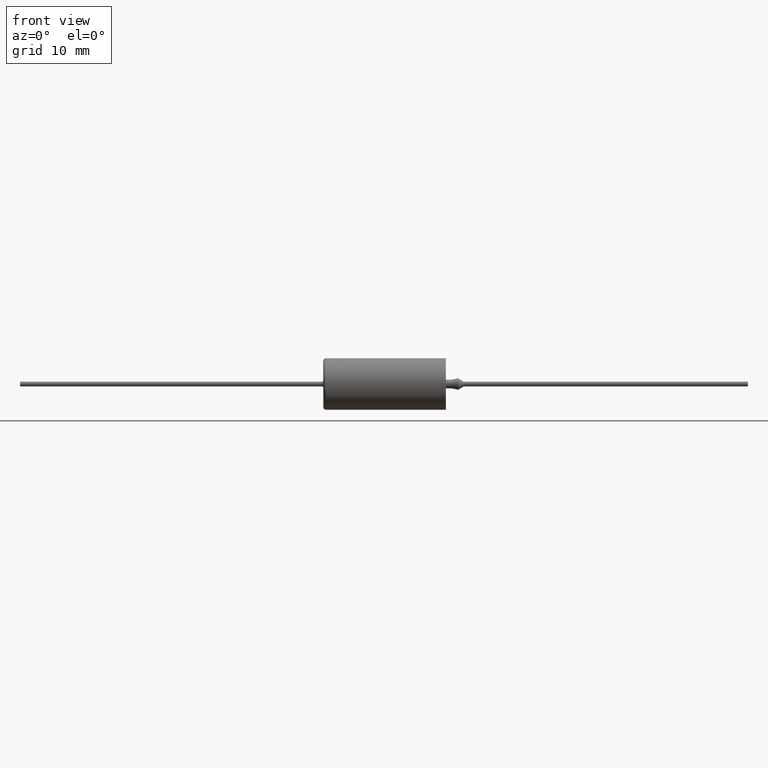
[diagram: clean part render]
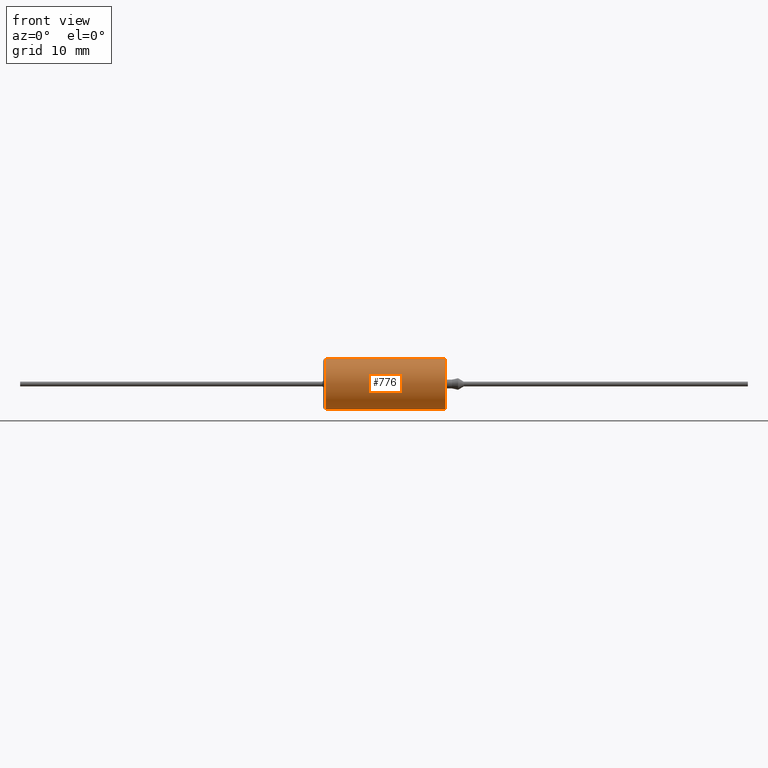
[diagram: same view with one face highlighted and labeled with its STEP entity id]
A machine part, front view. The second image highlights one B-rep face of the part: STEP entity #776.
In plain terms, the highlighted cylindrical surface (edge-blend (fillet) strip) has radius 3.795 mm, axis along (-1, -0, -0).
Its self-contained STEP definition (entity closure, byte-faithful):
#29 = CARTESIAN_POINT ( 'NONE',  ( 0.7967368280151977400, -1.135541335622584600E-009, 3.794977567310410900 ) ) ;
#34 = ORIENTED_EDGE ( 'NONE', *, *, #3274, .T. ) ;
#61 = VERTEX_POINT ( 'NONE', #4016 ) ;
#145 = ORIENTED_EDGE ( 'NONE', *, *, #406, .F. ) ;
#161 = LINE ( 'NONE', #568, #1588 ) ;
#162 = LINE ( 'NONE', #3474, #1861 ) ;
#166 = EDGE_CURVE ( 'NONE', #2262, #3066, #1674, .T. ) ;
#196 = CARTESIAN_POINT ( 'NONE',  ( 1.735129680208023800, -0.4997642943587106700, 3.761949049373760600 ) ) ;
#201 = CARTESIAN_POINT ( 'NONE',  ( 3.658290285649548100, 1.261067529811681900E-008, 3.794985740630745700 ) ) ;
#214 = DIRECTION ( 'NONE',  ( -1.000000000000000000, -0.0000000000000000000, -0.0000000000000000000 ) ) ;
#217 = CARTESIAN_POINT ( 'NONE',  ( 1.735129680208023800, -0.4997642943587106700, 3.761949049373760600 ) ) ;
#221 = DIRECTION ( 'NONE',  ( -1.000000000000000000, -0.0000000000000000000, -0.0000000000000000000 ) ) ;
#225 = VERTEX_POINT ( 'NONE', #784 ) ;
#235 = CARTESIAN_POINT ( 'NONE',  ( 3.047249708530260100, -0.1670667231519188700, 3.794967311832442700 ) ) ;
#278 = CARTESIAN_POINT ( 'NONE',  ( 3.056614301916358300, 1.310740858873400100E-009, 3.794986114345480400 ) ) ;
#325 = EDGE_CURVE ( 'NONE', #3915, #422, #2203, .T. ) ;
#344 = CARTESIAN_POINT ( 'NONE',  ( 4.304891517939793700, -0.05888474370725702000, 3.794543132836749600 ) ) ;
#392 = CARTESIAN_POINT ( 'NONE',  ( 18.03999999999999900, 0.0000000000000000000, 3.795000000000000400 ) ) ;
#393 = VERTEX_POINT ( 'NONE', #1642 ) ;
#404 = DIRECTION ( 'NONE',  ( -1.000000000000000000, -0.0000000000000000000, -0.0000000000000000000 ) ) ;
#406 = EDGE_CURVE ( 'NONE', #1019, #1360, #3738, .T. ) ;
#411 = CIRCLE ( 'NONE', #1962, 3.795000000000000400 ) ;
#420 = CARTESIAN_POINT ( 'NONE',  ( 0.7007149532289480600, -0.3341247696263883700, 3.783953791891350200 ) ) ;
#422 = VERTEX_POINT ( 'NONE', #1166 ) ;
#436 = CARTESIAN_POINT ( 'NONE',  ( 5.378398342063343700, 1.434771836136480700E-008, 3.794991221335218600 ) ) ;
#441 = DIRECTION ( 'NONE',  ( 0.0000000000000000000, 0.0000000000000000000, 1.000000000000000000 ) ) ;
#443 = CARTESIAN_POINT ( 'NONE',  ( 4.671617356346774700, -0.4363798927214266300, 3.770369487912895100 ) ) ;
#454 = DIRECTION ( 'NONE',  ( 1.000000000000000000, 0.0000000000000000000, 0.0000000000000000000 ) ) ;
#465 = FACE_OUTER_BOUND ( 'NONE', #3307, .T. ) ;
#514 = B_SPLINE_CURVE_WITH_KNOTS ( 'NONE', 3,
 ( #1576, #2921, #1986, #1922 ),
 .UNSPECIFIED., .F., .F.,
 ( 4, 4 ),
 ( 0.0000000000000000000, 1.000000000000000000 ),
 .UNSPECIFIED. ) ;
#516 = CARTESIAN_POINT ( 'NONE',  ( 3.297263422392719500, -0.4997642943587106700, 3.761949049373760600 ) ) ;
#524 = CARTESIAN_POINT ( 'NONE',  ( 3.473663498511816000, -0.1670678009036936100, 3.794966328717454700 ) ) ;
#528 = EDGE_CURVE ( 'NONE', #3090, #3634, #2171, .T. ) ;
#549 = CARTESIAN_POINT ( 'NONE',  ( 3.818564942604001800, -0.3341247709037028500, 3.783953791721662800 ) ) ;
#560 = CARTESIAN_POINT ( 'NONE',  ( 3.037885285718177300, -0.3341307079610417700, 3.783953003000382100 ) ) ;
#563 = ORIENTED_EDGE ( 'NONE', *, *, #2207, .F. ) ;
#568 = CARTESIAN_POINT ( 'NONE',  ( 18.03999999999999900, 0.0000000000000000000, 3.795000000000000400 ) ) ;
#582 = CARTESIAN_POINT ( 'NONE',  ( 18.03999999999999900, 4.647534602764205900E-016, -3.795000000000000400 ) ) ;
#583 = EDGE_CURVE ( 'NONE', #3734, #3041, #2405, .T. ) ;
#590 = LINE ( 'NONE', #1010, #4333 ) ;
#592 = EDGE_CURVE ( 'NONE', #2531, #3201, #514, .T. ) ;
#623 = CARTESIAN_POINT ( 'NONE',  ( 1.248873472111748900, -0.3341439825684537300, 3.783951239506321500 ) ) ;
#634 = ORIENTED_EDGE ( 'NONE', *, *, #3031, .F. ) ;
#648 = ORIENTED_EDGE ( 'NONE', *, *, #3158, .T. ) ;
#677 = EDGE_CURVE ( 'NONE', #2346, #1045, #3409, .T. ) ;
#679 = ORIENTED_EDGE ( 'NONE', *, *, #1114, .F. ) ;
#680 = B_SPLINE_CURVE_WITH_KNOTS ( 'NONE', 3,
 ( #2265, #235, #560, #913 ),
 .UNSPECIFIED., .F., .F.,
 ( 4, 4 ),
 ( 0.4415123066021989200, 1.000000000000000000 ),
 .UNSPECIFIED. ) ;
#731 = ORIENTED_EDGE ( 'NONE', *, *, #2227, .F. ) ;
#750 = DIRECTION ( 'NONE',  ( 1.000000000000000000, 0.0000000000000000000, 0.0000000000000000000 ) ) ;
#776 = ADVANCED_FACE ( 'NONE', ( #465 ), #3861, .T. ) ;
#784 = CARTESIAN_POINT ( 'NONE',  ( 4.707904748187333500, -0.3090537871630185700, 3.782394844095496600 ) ) ;
#794 = CARTESIAN_POINT ( 'NONE',  ( 1.735129680208023800, -0.4997642943587106700, 3.761949049373760600 ) ) ;
#809 = CARTESIAN_POINT ( 'NONE',  ( 4.707904748187333500, -0.3090537871630185700, 3.782394844095496600 ) ) ;
#816 = VECTOR ( 'NONE', #750, 1000.000000000000000 ) ;
#818 = DIRECTION ( 'NONE',  ( 1.000000000000000000, 0.0000000000000000000, 0.0000000000000000000 ) ) ;
#828 = CARTESIAN_POINT ( 'NONE',  ( 1.484155899049565400, -0.1670743799871687900, 3.794996994276370400 ) ) ;
#866 = VERTEX_POINT ( 'NONE', #582 ) ;
#888 = CARTESIAN_POINT ( 'NONE',  ( 3.028519480344098000, -0.4997642943587106700, 3.761949049373760600 ) ) ;
#892 = VERTEX_POINT ( 'NONE', #888 ) ;
#893 = CARTESIAN_POINT ( 'NONE',  ( 1.831286780358707800, -0.1670623038527653800, 3.794955467334448300 ) ) ;
#896 = CARTESIAN_POINT ( 'NONE',  ( 0.7967368280151977400, -1.135541335622584600E-009, 3.794977567310410900 ) ) ;
#908 = EDGE_CURVE ( 'NONE', #3380, #2291, #411, .T. ) ;
#909 = CARTESIAN_POINT ( 'NONE',  ( 1.114748877404918100, 1.339220118626902900E-009, 3.794999801708622800 ) ) ;
#913 = CARTESIAN_POINT ( 'NONE',  ( 3.028519480344098000, -0.4997642943587106700, 3.761949049373760600 ) ) ;
#916 = DIRECTION ( 'NONE',  ( 0.0000000000000000000, 0.0000000000000000000, -1.000000000000000000 ) ) ;
#922 = CARTESIAN_POINT ( 'NONE',  ( 1.315936966647324800, -0.4997642943587096700, 3.761949049373760600 ) ) ;
#934 = CARTESIAN_POINT ( 'NONE',  ( 4.743048270700279900, -0.03925806866907864000, 3.794847704873221000 ) ) ;
#945 = CARTESIAN_POINT ( 'NONE',  ( 2.965051877595765300, 1.286466660152226300E-008, 3.794986037221314200 ) ) ;
#985 = EDGE_CURVE ( 'NONE', #2621, #3090, #1633, .T. ) ;
#1010 = CARTESIAN_POINT ( 'NONE',  ( 18.03999999999999900, 0.0000000000000000000, 3.795000000000000400 ) ) ;
#1017 = EDGE_CURVE ( 'NONE', #3120, #866, #3378, .T. ) ;
#1019 = VERTEX_POINT ( 'NONE', #2271 ) ;
#1038 = CARTESIAN_POINT ( 'NONE',  ( 3.891842957260163200, -0.4997642943587106700, 3.761949049373760600 ) ) ;
#1045 = VERTEX_POINT ( 'NONE', #2948 ) ;
#1066 = CARTESIAN_POINT ( 'NONE',  ( 4.036011471948663500, -1.137249635612766000E-009, 3.794977567049227000 ) ) ;
#1089 = ORIENTED_EDGE ( 'NONE', *, *, #908, .T. ) ;
#1094 = ORIENTED_EDGE ( 'NONE', *, *, #4239, .T. ) ;
#1103 = B_SPLINE_CURVE_WITH_KNOTS ( 'NONE', 3,
 ( #4290, #3584, #2555, #945 ),
 .UNSPECIFIED., .F., .F.,
 ( 4, 4 ),
 ( 0.0000000000000000000, 0.5584875452184870900 ),
 .UNSPECIFIED. ) ;
#1104 = B_SPLINE_CURVE_WITH_KNOTS ( 'NONE', 3,
 ( #3384, #1701, #2026, #1038 ),
 .UNSPECIFIED., .F., .F.,
 ( 4, 4 ),
 ( 0.5027951905243075400, 1.000000000000000000 ),
 .UNSPECIFIED. ) ;
#1110 = CARTESIAN_POINT ( 'NONE',  ( 3.514356370823136000, -0.4997642943587106700, 3.761949049373760600 ) ) ;
#1114 = EDGE_CURVE ( 'NONE', #3066, #2931, #1955, .T. ) ;
#1116 = CARTESIAN_POINT ( 'NONE',  ( 18.03999999999999900, 0.0000000000000000000, 3.795000000000000400 ) ) ;
#1139 = LINE ( 'NONE', #3194, #2878 ) ;
#1141 = EDGE_CURVE ( 'NONE', #3656, #3014, #1104, .T. ) ;
#1146 = CARTESIAN_POINT ( 'NONE',  ( 4.995209430546401200, -0.3341359286692290900, 3.783952309444060800 ) ) ;
#1161 = CARTESIAN_POINT ( 'NONE',  ( 3.561859510770319500, 3.479633199176711400E-008, 3.794985583759084700 ) ) ;
#1166 = CARTESIAN_POINT ( 'NONE',  ( 1.414902502526452800, 1.414942446782219700E-009, 3.794999801662097800 ) ) ;
#1185 = CARTESIAN_POINT ( 'NONE',  ( 18.03999999999999900, 0.0000000000000000000, 3.795000000000000400 ) ) ;
#1192 = VECTOR ( 'NONE', #3417, 1000.000000000000000 ) ;
#1203 = VERTEX_POINT ( 'NONE', #3413 ) ;
#1206 = VECTOR ( 'NONE', #4235, 1000.000000000000000 ) ;
#1234 = CARTESIAN_POINT ( 'NONE',  ( 1.879360679399979100, -1.138095618239165700E-009, 3.794977566920147500 ) ) ;
#1261 = ORIENTED_EDGE ( 'NONE', *, *, #2201, .F. ) ;
#1290 = EDGE_CURVE ( 'NONE', #3656, #3251, #2884, .T. ) ;
#1305 = CARTESIAN_POINT ( 'NONE',  ( 5.378398342063343700, 1.434771836136480700E-008, 3.794991221335218600 ) ) ;
#1309 = VECTOR ( 'NONE', #818, 1000.000000000000000 ) ;
#1360 = VERTEX_POINT ( 'NONE', #436 ) ;
#1361 = ORIENTED_EDGE ( 'NONE', *, *, #3214, .F. ) ;
#1398 = CARTESIAN_POINT ( 'NONE',  ( 18.03999999999999900, 4.647534602764205900E-016, -3.795000000000000400 ) ) ;
#1411 = LINE ( 'NONE', #3910, #4318 ) ;
#1458 = B_SPLINE_CURVE_WITH_KNOTS ( 'NONE', 3,
 ( #3159, #1820, #1146, #2482 ),
 .UNSPECIFIED., .F., .F.,
 ( 4, 4 ),
 ( 0.3838199637711856000, 1.000000000000000000 ),
 .UNSPECIFIED. ) ;
#1487 = LINE ( 'NONE', #2596, #3616 ) ;
#1506 = CARTESIAN_POINT ( 'NONE',  ( 4.233375229108257400, -0.3090537871630185700, 3.782394844095496600 ) ) ;
#1524 = EDGE_CURVE ( 'NONE', #2665, #4315, #3136, .T. ) ;
#1542 = CARTESIAN_POINT ( 'NONE',  ( 3.914628471433054800, -1.136385305933532200E-009, 3.794977567181413700 ) ) ;
#1559 = DIRECTION ( 'NONE',  ( 1.000000000000000000, 0.0000000000000000000, 0.0000000000000000000 ) ) ;
#1570 = ORIENTED_EDGE ( 'NONE', *, *, #1141, .F. ) ;
#1576 = CARTESIAN_POINT ( 'NONE',  ( 4.233375229108257400, -0.3090537871630185700, 3.782394844095496600 ) ) ;
#1583 = DIRECTION ( 'NONE',  ( 1.000000000000000000, 0.0000000000000000000, 0.0000000000000000000 ) ) ;
#1588 = VECTOR ( 'NONE', #221, 1000.000000000000000 ) ;
#1609 = CARTESIAN_POINT ( 'NONE',  ( 5.282358061730480600, -0.3341359282545661700, 3.783952309499147800 ) ) ;
#1633 = LINE ( 'NONE', #217, #1206 ) ;
#1642 = CARTESIAN_POINT ( 'NONE',  ( 4.653473655393446200, -0.4997642943587106700, 3.761949049373760600 ) ) ;
#1664 = ORIENTED_EDGE ( 'NONE', *, *, #3676, .T. ) ;
#1674 = B_SPLINE_CURVE_WITH_KNOTS ( 'NONE', 3,
 ( #2122, #3820, #1751, #1110 ),
 .UNSPECIFIED., .F., .F.,
 ( 4, 4 ),
 ( 0.4441890944831781200, 1.000000000000000000 ),
 .UNSPECIFIED. ) ;
#1701 = CARTESIAN_POINT ( 'NONE',  ( 3.987958399918972500, -0.1670623032074989600, 3.794955467590766400 ) ) ;
#1704 = CARTESIAN_POINT ( 'NONE',  ( 18.03999999999999900, 0.0000000000000000000, 3.795000000000000400 ) ) ;
#1739 = EDGE_CURVE ( 'NONE', #1834, #1019, #162, .T. ) ;
#1740 = CARTESIAN_POINT ( 'NONE',  ( 3.891842957260163200, -0.4997642943587106700, 3.761949049373760600 ) ) ;
#1751 = CARTESIAN_POINT ( 'NONE',  ( 3.562338541248545100, -0.3341315039642117100, 3.783952897253612100 ) ) ;
#1773 = LINE ( 'NONE', #2788, #3360 ) ;
#1798 = CARTESIAN_POINT ( 'NONE',  ( 4.689761047234005900, -0.3727826763112752100, 3.777187652526455200 ) ) ;
#1807 = CARTESIAN_POINT ( 'NONE',  ( 4.947171056527290400, -0.4997642943587106700, 3.761949049373760600 ) ) ;
#1820 = CARTESIAN_POINT ( 'NONE',  ( 5.043242817517984200, -0.1670698811540137500, 3.794975344605389500 ) ) ;
#1834 = VERTEX_POINT ( 'NONE', #1807 ) ;
#1835 = EDGE_CURVE ( 'NONE', #61, #1834, #1458, .T. ) ;
#1847 = B_SPLINE_CURVE_WITH_KNOTS ( 'NONE', 3,
 ( #2767, #2433, #2724, #4098 ),
 .UNSPECIFIED., .F., .F.,
 ( 4, 4 ),
 ( 0.0000000000000000000, 0.9157094183413874200 ),
 .UNSPECIFIED. ) ;
#1861 = VECTOR ( 'NONE', #2452, 1000.000000000000000 ) ;
#1879 = ORIENTED_EDGE ( 'NONE', *, *, #2915, .F. ) ;
#1881 = DIRECTION ( 'NONE',  ( 0.0000000000000000000, 0.0000000000000000000, -1.000000000000000000 ) ) ;
#1922 = CARTESIAN_POINT ( 'NONE',  ( 4.304891517939793700, -0.05888474370725702000, 3.794543132836749600 ) ) ;
#1927 = CARTESIAN_POINT ( 'NONE',  ( 1.622661293356940400, -0.4997642943587106700, 3.761949049373760600 ) ) ;
#1939 = ORIENTED_EDGE ( 'NONE', *, *, #2955, .F. ) ;
#1943 = ORIENTED_EDGE ( 'NONE', *, *, #2740, .T. ) ;
#1948 = DIRECTION ( 'NONE',  ( 1.000000000000000000, 0.0000000000000000000, 0.0000000000000000000 ) ) ;
#1955 = LINE ( 'NONE', #2713, #2995 ) ;
#1962 = AXIS2_PLACEMENT_3D ( 'NONE', #3609, #1583, #1881 ) ;
#1972 = LINE ( 'NONE', #3771, #816 ) ;
#1986 = CARTESIAN_POINT ( 'NONE',  ( 4.281052742218062900, -0.1423778396059969000, 3.793247464456865400 ) ) ;
#2000 = EDGE_CURVE ( 'NONE', #2108, #892, #680, .T. ) ;
#2026 = CARTESIAN_POINT ( 'NONE',  ( 3.939905272855689100, -0.3341247722125929600, 3.783953791547780600 ) ) ;
#2040 = CARTESIAN_POINT ( 'NONE',  ( 2.641702550035738300, -0.4997642943587106700, 3.761949049373760600 ) ) ;
#2070 = VERTEX_POINT ( 'NONE', #3006 ) ;
#2108 = VERTEX_POINT ( 'NONE', #278 ) ;
#2122 = CARTESIAN_POINT ( 'NONE',  ( 3.658290285649548100, 1.261067529811681900E-008, 3.794985740630745700 ) ) ;
#2169 = VECTOR ( 'NONE', #2220, 1000.000000000000000 ) ;
#2171 = LINE ( 'NONE', #3917, #4388 ) ;
#2172 = ORIENTED_EDGE ( 'NONE', *, *, #1835, .F. ) ;
#2174 = CARTESIAN_POINT ( 'NONE',  ( 1.879360679399979100, -1.138095618239165700E-009, 3.794977566920147500 ) ) ;
#2197 = DIRECTION ( 'NONE',  ( 1.000000000000000000, 0.0000000000000000000, 0.0000000000000000000 ) ) ;
#2199 = CARTESIAN_POINT ( 'NONE',  ( 3.561859510770319500, 3.479633199176711400E-008, 3.794985583759084700 ) ) ;
#2201 = EDGE_CURVE ( 'NONE', #225, #2531, #1139, .T. ) ;
#2203 = B_SPLINE_CURVE_WITH_KNOTS ( 'NONE', 3,
 ( #2495, #2594, #828, #2913 ),
 .UNSPECIFIED., .F., .F.,
 ( 4, 4 ),
 ( 0.0000000000000000000, 0.9157093637414721600 ),
 .UNSPECIFIED. ) ;
#2207 = EDGE_CURVE ( 'NONE', #3201, #2346, #2215, .T. ) ;
#2215 = LINE ( 'NONE', #3477, #1309 ) ;
#2220 = DIRECTION ( 'NONE',  ( -1.000000000000000000, -0.0000000000000000000, -0.0000000000000000000 ) ) ;
#2222 = CARTESIAN_POINT ( 'NONE',  ( 3.914628471433054800, -1.136385305933532200E-009, 3.794977567181413700 ) ) ;
#2223 = B_SPLINE_CURVE_WITH_KNOTS ( 'NONE', 3,
 ( #3485, #443, #1798, #809 ),
 .UNSPECIFIED., .F., .F.,
 ( 4, 4 ),
 ( 0.0000000000000000000, 1.000000000000000000 ),
 .UNSPECIFIED. ) ;
#2227 = EDGE_CURVE ( 'NONE', #3041, #3915, #1411, .T. ) ;
#2255 = ORIENTED_EDGE ( 'NONE', *, *, #1017, .F. ) ;
#2258 = CARTESIAN_POINT ( 'NONE',  ( 0.9393454066262095800, -0.4997642943587106700, 3.761949049373760600 ) ) ;
#2262 = VERTEX_POINT ( 'NONE', #201 ) ;
#2263 = CARTESIAN_POINT ( 'NONE',  ( 1.181812029369666100, -0.1670743901499334700, 3.794996994974492800 ) ) ;
#2265 = CARTESIAN_POINT ( 'NONE',  ( 3.056614301916358300, 1.310740858873400100E-009, 3.794986114345480400 ) ) ;
#2271 = CARTESIAN_POINT ( 'NONE',  ( 5.234333538760533400, -0.4997642943587106700, 3.761949049373760600 ) ) ;
#2281 = B_SPLINE_CURVE_WITH_KNOTS ( 'NONE', 3,
 ( #29, #2396, #420, #3094 ),
 .UNSPECIFIED., .F., .F.,
 ( 4, 4 ),
 ( 0.5027951905429805000, 1.000000000000000000 ),
 .UNSPECIFIED. ) ;
#2291 = VERTEX_POINT ( 'NONE', #2541 ) ;
#2300 = LINE ( 'NONE', #3978, #3773 ) ;
#2332 = LINE ( 'NONE', #1398, #2689 ) ;
#2340 = EDGE_CURVE ( 'NONE', #2262, #4315, #4216, .T. ) ;
#2346 = VERTEX_POINT ( 'NONE', #3209 ) ;
#2396 = CARTESIAN_POINT ( 'NONE',  ( 0.7487259181180926400, -0.1670623019018401800, 3.794955468109411500 ) ) ;
#2405 = B_SPLINE_CURVE_WITH_KNOTS ( 'NONE', 3,
 ( #909, #2263, #623, #922 ),
 .UNSPECIFIED., .F., .F.,
 ( 4, 4 ),
 ( 0.08429063017640003900, 1.000000000000000000 ),
 .UNSPECIFIED. ) ;
#2433 = CARTESIAN_POINT ( 'NONE',  ( 0.9872327060278312000, -0.3341438429801667500, 3.783951258050230600 ) ) ;
#2452 = DIRECTION ( 'NONE',  ( 1.000000000000000000, 0.0000000000000000000, 0.0000000000000000000 ) ) ;
#2473 = LINE ( 'NONE', #1116, #3269 ) ;
#2482 = CARTESIAN_POINT ( 'NONE',  ( 4.947171056527290400, -0.4997642943587106700, 3.761949049373760600 ) ) ;
#2491 = ORIENTED_EDGE ( 'NONE', *, *, #3308, .T. ) ;
#2495 = CARTESIAN_POINT ( 'NONE',  ( 1.622661293356940400, -0.4997642943587106700, 3.761949049373760600 ) ) ;
#2531 = VERTEX_POINT ( 'NONE', #1506 ) ;
#2534 = CARTESIAN_POINT ( 'NONE',  ( 18.03999999999999900, 0.0000000000000000000, 3.795000000000000400 ) ) ;
#2541 = CARTESIAN_POINT ( 'NONE',  ( 0.4000000000000010200, 4.647534602764205900E-016, -3.795000000000000400 ) ) ;
#2555 = CARTESIAN_POINT ( 'NONE',  ( 2.917081894270312500, -0.1670671319721213100, 3.794967131342457600 ) ) ;
#2568 = AXIS2_PLACEMENT_3D ( 'NONE', #3511, #4204, #441 ) ;
#2594 = CARTESIAN_POINT ( 'NONE',  ( 1.553407546219404800, -0.3341440000663621900, 3.783951237181773800 ) ) ;
#2596 = CARTESIAN_POINT ( 'NONE',  ( 3.028519480344098000, -0.4997642943587106700, 3.761949049373760600 ) ) ;
#2611 = ORIENTED_EDGE ( 'NONE', *, *, #3391, .F. ) ;
#2621 = VERTEX_POINT ( 'NONE', #794 ) ;
#2626 = VECTOR ( 'NONE', #2770, 1000.000000000000000 ) ;
#2665 = VERTEX_POINT ( 'NONE', #516 ) ;
#2687 = EDGE_CURVE ( 'NONE', #3423, #2621, #3667, .T. ) ;
#2689 = VECTOR ( 'NONE', #404, 1000.000000000000000 ) ;
#2713 = CARTESIAN_POINT ( 'NONE',  ( 3.514356370823136000, -0.4997642943587106700, 3.761949049373760600 ) ) ;
#2715 = ORIENTED_EDGE ( 'NONE', *, *, #1290, .T. ) ;
#2724 = CARTESIAN_POINT ( 'NONE',  ( 1.035118436423674300, -0.1670744712235819900, 3.794997000543673100 ) ) ;
#2727 = ORIENTED_EDGE ( 'NONE', *, *, #2340, .T. ) ;
#2734 = VERTEX_POINT ( 'NONE', #896 ) ;
#2737 = CARTESIAN_POINT ( 'NONE',  ( 1.315936966647324800, -0.4997642943587096700, 3.761949049373760600 ) ) ;
#2740 = EDGE_CURVE ( 'NONE', #2734, #3380, #2300, .T. ) ;
#2754 = ORIENTED_EDGE ( 'NONE', *, *, #1524, .F. ) ;
#2767 = CARTESIAN_POINT ( 'NONE',  ( 0.9393454066262095800, -0.4997642943587106700, 3.761949049373760600 ) ) ;
#2770 = DIRECTION ( 'NONE',  ( -1.000000000000000000, -0.0000000000000000000, -0.0000000000000000000 ) ) ;
#2788 = CARTESIAN_POINT ( 'NONE',  ( 3.891842957260163200, -0.4997642943587106700, 3.761949049373760600 ) ) ;
#2845 = VERTEX_POINT ( 'NONE', #3598 ) ;
#2867 = CARTESIAN_POINT ( 'NONE',  ( 3.866596734524811600, -0.1670623025466986300, 3.794955467853254700 ) ) ;
#2878 = VECTOR ( 'NONE', #3151, 1000.000000000000000 ) ;
#2884 = LINE ( 'NONE', #392, #2626 ) ;
#2913 = CARTESIAN_POINT ( 'NONE',  ( 1.414902502526452800, 1.414942446782219700E-009, 3.794999801662097800 ) ) ;
#2914 = DIRECTION ( 'NONE',  ( 1.000000000000000000, 0.0000000000000000000, 0.0000000000000000000 ) ) ;
#2915 = EDGE_CURVE ( 'NONE', #393, #225, #2223, .T. ) ;
#2921 = CARTESIAN_POINT ( 'NONE',  ( 4.257214004829987400, -0.2258279957068360900, 3.789195098193591800 ) ) ;
#2931 = VERTEX_POINT ( 'NONE', #3407 ) ;
#2948 = CARTESIAN_POINT ( 'NONE',  ( 4.754263570156037000, -1.170959456689977600E-011, 3.794999978605300600 ) ) ;
#2955 = EDGE_CURVE ( 'NONE', #4359, #1203, #1847, .T. ) ;
#2965 = ORIENTED_EDGE ( 'NONE', *, *, #528, .F. ) ;
#2995 = VECTOR ( 'NONE', #3034, 1000.000000000000000 ) ;
#3006 = CARTESIAN_POINT ( 'NONE',  ( 2.965051877595765300, 1.286466660152226300E-008, 3.794986037221314200 ) ) ;
#3011 = ORIENTED_EDGE ( 'NONE', *, *, #985, .F. ) ;
#3014 = VERTEX_POINT ( 'NONE', #1740 ) ;
#3016 = EDGE_CURVE ( 'NONE', #866, #2291, #2332, .T. ) ;
#3031 = EDGE_CURVE ( 'NONE', #2845, #4359, #1972, .T. ) ;
#3034 = DIRECTION ( 'NONE',  ( 1.000000000000000000, 0.0000000000000000000, 0.0000000000000000000 ) ) ;
#3041 = VERTEX_POINT ( 'NONE', #2737 ) ;
#3066 = VERTEX_POINT ( 'NONE', #3101 ) ;
#3090 = VERTEX_POINT ( 'NONE', #2040 ) ;
#3094 = CARTESIAN_POINT ( 'NONE',  ( 0.6526948067485348600, -0.4997642943587106700, 3.761949049373760200 ) ) ;
#3101 = CARTESIAN_POINT ( 'NONE',  ( 3.514356370823136000, -0.4997642943587106700, 3.761949049373760600 ) ) ;
#3120 = VERTEX_POINT ( 'NONE', #4234 ) ;
#3121 = ORIENTED_EDGE ( 'NONE', *, *, #3414, .F. ) ;
#3136 = B_SPLINE_CURVE_WITH_KNOTS ( 'NONE', 3,
 ( #3901, #4335, #524, #2199 ),
 .UNSPECIFIED., .F., .F.,
 ( 4, 4 ),
 ( 0.0000000000000000000, 0.5558106207557079700 ),
 .UNSPECIFIED. ) ;
#3151 = DIRECTION ( 'NONE',  ( -1.000000000000000000, 0.0000000000000000000, 0.0000000000000000000 ) ) ;
#3158 = EDGE_CURVE ( 'NONE', #2108, #2070, #590, .T. ) ;
#3159 = CARTESIAN_POINT ( 'NONE',  ( 5.091277410812238300, 1.435499102687238100E-008, 3.794991221312594500 ) ) ;
#3173 = LINE ( 'NONE', #2534, #2169 ) ;
#3194 = CARTESIAN_POINT ( 'NONE',  ( 4.707904748187333500, -0.3090537871630185700, 3.782394844095496600 ) ) ;
#3201 = VERTEX_POINT ( 'NONE', #344 ) ;
#3209 = CARTESIAN_POINT ( 'NONE',  ( 4.737440619916518400, -0.05888474370725702000, 3.794543132836749600 ) ) ;
#3214 = EDGE_CURVE ( 'NONE', #2734, #2845, #2281, .T. ) ;
#3251 = VERTEX_POINT ( 'NONE', #1542 ) ;
#3262 = ORIENTED_EDGE ( 'NONE', *, *, #325, .F. ) ;
#3266 = ORIENTED_EDGE ( 'NONE', *, *, #3016, .F. ) ;
#3269 = VECTOR ( 'NONE', #3878, 1000.000000000000000 ) ;
#3274 = EDGE_CURVE ( 'NONE', #3423, #422, #161, .T. ) ;
#3307 = EDGE_LOOP ( 'NONE', ( #3266, #2255, #2491, #145, #4327, #2172, #1094, #4158, #563, #3600, #1261, #1879, #3461, #1570, #2715, #3577, #679, #4100, #2727, #2754, #3121, #3712, #648, #2611, #2965, #3011, #4050, #34, #3262, #731, #3976, #1664, #1939, #634, #1361, #1943, #1089 ) ) ;
#3308 = EDGE_CURVE ( 'NONE', #3120, #1360, #3173, .T. ) ;
#3332 = CARTESIAN_POINT ( 'NONE',  ( 5.330377598884508600, -0.1670698810370555000, 3.794975344668265000 ) ) ;
#3360 = VECTOR ( 'NONE', #454, 1000.000000000000000 ) ;
#3378 = CIRCLE ( 'NONE', #3770, 3.795000000000000400 ) ;
#3380 = VERTEX_POINT ( 'NONE', #4248 ) ;
#3384 = CARTESIAN_POINT ( 'NONE',  ( 4.036011471948663500, -1.137249635612766000E-009, 3.794977567049227000 ) ) ;
#3391 = EDGE_CURVE ( 'NONE', #3634, #2070, #1103, .T. ) ;
#3407 = CARTESIAN_POINT ( 'NONE',  ( 3.770523965662925900, -0.4997642943587106700, 3.761949049373760600 ) ) ;
#3409 = B_SPLINE_CURVE_WITH_KNOTS ( 'NONE', 3,
 ( #3619, #934, #4307, #3960 ),
 .UNSPECIFIED., .F., .F.,
 ( 4, 4 ),
 ( 0.0000000000000000000, 0.3160453062575874800 ),
 .UNSPECIFIED. ) ;
#3413 = CARTESIAN_POINT ( 'NONE',  ( 1.083005473863575900, 7.346072776687542900E-010, 3.794999802079777100 ) ) ;
#3414 = EDGE_CURVE ( 'NONE', #892, #2665, #1487, .T. ) ;
#3417 = DIRECTION ( 'NONE',  ( -1.000000000000000000, -0.0000000000000000000, -0.0000000000000000000 ) ) ;
#3423 = VERTEX_POINT ( 'NONE', #1234 ) ;
#3461 = ORIENTED_EDGE ( 'NONE', *, *, #3707, .F. ) ;
#3474 = CARTESIAN_POINT ( 'NONE',  ( 4.947171056527290400, -0.4997642943587106700, 3.761949049373760600 ) ) ;
#3477 = CARTESIAN_POINT ( 'NONE',  ( 4.304891517939793700, -0.05888474370725702000, 3.794543132836749600 ) ) ;
#3485 = CARTESIAN_POINT ( 'NONE',  ( 4.653473655393446200, -0.4997642943587106700, 3.761949049373760600 ) ) ;
#3511 = CARTESIAN_POINT ( 'NONE',  ( 18.03999999999999900, 0.0000000000000000000, 0.0000000000000000000 ) ) ;
#3542 = CARTESIAN_POINT ( 'NONE',  ( 1.783212826263324200, -0.3341247734907148400, 3.783953791377985300 ) ) ;
#3577 = ORIENTED_EDGE ( 'NONE', *, *, #3782, .F. ) ;
#3584 = CARTESIAN_POINT ( 'NONE',  ( 2.869112725200615400, -0.3341317440660123200, 3.783952865356766900 ) ) ;
#3598 = CARTESIAN_POINT ( 'NONE',  ( 0.6526948067485348600, -0.4997642943587106700, 3.761949049373760200 ) ) ;
#3600 = ORIENTED_EDGE ( 'NONE', *, *, #592, .F. ) ;
#3609 = CARTESIAN_POINT ( 'NONE',  ( 0.4000000000000010200, 0.0000000000000000000, 0.0000000000000000000 ) ) ;
#3616 = VECTOR ( 'NONE', #1948, 1000.000000000000000 ) ;
#3619 = CARTESIAN_POINT ( 'NONE',  ( 4.737440619916518400, -0.05888474370725702000, 3.794543132836749600 ) ) ;
#3624 = LINE ( 'NONE', #1704, #1192 ) ;
#3634 = VERTEX_POINT ( 'NONE', #4075 ) ;
#3656 = VERTEX_POINT ( 'NONE', #1066 ) ;
#3667 = B_SPLINE_CURVE_WITH_KNOTS ( 'NONE', 3,
 ( #2174, #893, #3542, #196 ),
 .UNSPECIFIED., .F., .F.,
 ( 4, 4 ),
 ( 0.5027951905150793700, 1.000000000000000000 ),
 .UNSPECIFIED. ) ;
#3676 = EDGE_CURVE ( 'NONE', #3734, #1203, #3624, .T. ) ;
#3707 = EDGE_CURVE ( 'NONE', #3014, #393, #1773, .T. ) ;
#3712 = ORIENTED_EDGE ( 'NONE', *, *, #2000, .F. ) ;
#3734 = VERTEX_POINT ( 'NONE', #3807 ) ;
#3738 = B_SPLINE_CURVE_WITH_KNOTS ( 'NONE', 3,
 ( #4331, #1609, #3332, #1305 ),
 .UNSPECIFIED., .F., .F.,
 ( 4, 4 ),
 ( 0.0000000000000000000, 0.6161800363412263100 ),
 .UNSPECIFIED. ) ;
#3770 = AXIS2_PLACEMENT_3D ( 'NONE', #4272, #2914, #916 ) ;
#3771 = CARTESIAN_POINT ( 'NONE',  ( 0.6526948067485348600, -0.4997642943587106700, 3.761949049373760600 ) ) ;
#3773 = VECTOR ( 'NONE', #214, 1000.000000000000000 ) ;
#3782 = EDGE_CURVE ( 'NONE', #2931, #3251, #4011, .T. ) ;
#3807 = CARTESIAN_POINT ( 'NONE',  ( 1.114748877404918100, 1.339220118626902900E-009, 3.794999801708622800 ) ) ;
#3820 = CARTESIAN_POINT ( 'NONE',  ( 3.610314019299299700, -0.1670669701383235600, 3.794966693096283100 ) ) ;
#3861 = CYLINDRICAL_SURFACE ( 'NONE', #2568, 3.795000000000000400 ) ;
#3878 = DIRECTION ( 'NONE',  ( -1.000000000000000000, -0.0000000000000000000, -0.0000000000000000000 ) ) ;
#3901 = CARTESIAN_POINT ( 'NONE',  ( 3.297263422392719500, -0.4997642943587106700, 3.761949049373760600 ) ) ;
#3910 = CARTESIAN_POINT ( 'NONE',  ( 1.315936966647328400, -0.4997642943587106700, 3.761949049373760600 ) ) ;
#3915 = VERTEX_POINT ( 'NONE', #1927 ) ;
#3917 = CARTESIAN_POINT ( 'NONE',  ( 2.641702550035738300, -0.4997642943587106700, 3.761949049373760600 ) ) ;
#3960 = CARTESIAN_POINT ( 'NONE',  ( 4.754263570156037000, -1.170959456689977600E-011, 3.794999978605300600 ) ) ;
#3976 = ORIENTED_EDGE ( 'NONE', *, *, #583, .F. ) ;
#3978 = CARTESIAN_POINT ( 'NONE',  ( 18.03999999999999900, 0.0000000000000000000, 3.795000000000000400 ) ) ;
#4006 = VECTOR ( 'NONE', #4077, 1000.000000000000000 ) ;
#4011 = B_SPLINE_CURVE_WITH_KNOTS ( 'NONE', 3,
 ( #4215, #549, #2867, #2222 ),
 .UNSPECIFIED., .F., .F.,
 ( 4, 4 ),
 ( 0.0000000000000000000, 0.4972048094662428500 ),
 .UNSPECIFIED. ) ;
#4016 = CARTESIAN_POINT ( 'NONE',  ( 5.091277410812238300, 1.435499102687238100E-008, 3.794991221312594500 ) ) ;
#4041 = DIRECTION ( 'NONE',  ( -1.000000000000000000, -0.0000000000000000000, -0.0000000000000000000 ) ) ;
#4050 = ORIENTED_EDGE ( 'NONE', *, *, #2687, .F. ) ;
#4075 = CARTESIAN_POINT ( 'NONE',  ( 2.821136955495840800, -0.4997642943587106700, 3.761949049373760600 ) ) ;
#4077 = DIRECTION ( 'NONE',  ( -1.000000000000000000, -0.0000000000000000000, -0.0000000000000000000 ) ) ;
#4098 = CARTESIAN_POINT ( 'NONE',  ( 1.083005473863575900, 7.346072776687542900E-010, 3.794999802079777100 ) ) ;
#4100 = ORIENTED_EDGE ( 'NONE', *, *, #166, .F. ) ;
#4158 = ORIENTED_EDGE ( 'NONE', *, *, #677, .F. ) ;
#4204 = DIRECTION ( 'NONE',  ( -1.000000000000000000, -0.0000000000000000000, -0.0000000000000000000 ) ) ;
#4215 = CARTESIAN_POINT ( 'NONE',  ( 3.770523965662925900, -0.4997642943587106700, 3.761949049373760600 ) ) ;
#4216 = LINE ( 'NONE', #1185, #4006 ) ;
#4234 = CARTESIAN_POINT ( 'NONE',  ( 18.03999999999999900, 0.0000000000000000000, 3.795000000000000400 ) ) ;
#4235 = DIRECTION ( 'NONE',  ( 1.000000000000000000, 0.0000000000000000000, 0.0000000000000000000 ) ) ;
#4239 = EDGE_CURVE ( 'NONE', #61, #1045, #2473, .T. ) ;
#4248 = CARTESIAN_POINT ( 'NONE',  ( 0.4000000000000010200, 0.0000000000000000000, 3.795000000000000400 ) ) ;
#4272 = CARTESIAN_POINT ( 'NONE',  ( 18.03999999999999900, 0.0000000000000000000, 0.0000000000000000000 ) ) ;
#4290 = CARTESIAN_POINT ( 'NONE',  ( 2.821136955495840800, -0.4997642943587106700, 3.761949049373760600 ) ) ;
#4307 = CARTESIAN_POINT ( 'NONE',  ( 4.748655920609478700, -0.01962903379214158200, 3.794999972556516000 ) ) ;
#4315 = VERTEX_POINT ( 'NONE', #1161 ) ;
#4318 = VECTOR ( 'NONE', #2197, 1000.000000000000000 ) ;
#4327 = ORIENTED_EDGE ( 'NONE', *, *, #1739, .F. ) ;
#4331 = CARTESIAN_POINT ( 'NONE',  ( 5.234333538760533400, -0.4997642943587106700, 3.761949049373760600 ) ) ;
#4333 = VECTOR ( 'NONE', #4041, 1000.000000000000000 ) ;
#4335 = CARTESIAN_POINT ( 'NONE',  ( 3.385468726545991300, -0.3341335826829198200, 3.783952621101709400 ) ) ;
#4359 = VERTEX_POINT ( 'NONE', #2258 ) ;
#4388 = VECTOR ( 'NONE', #1559, 1000.000000000000000 ) ;